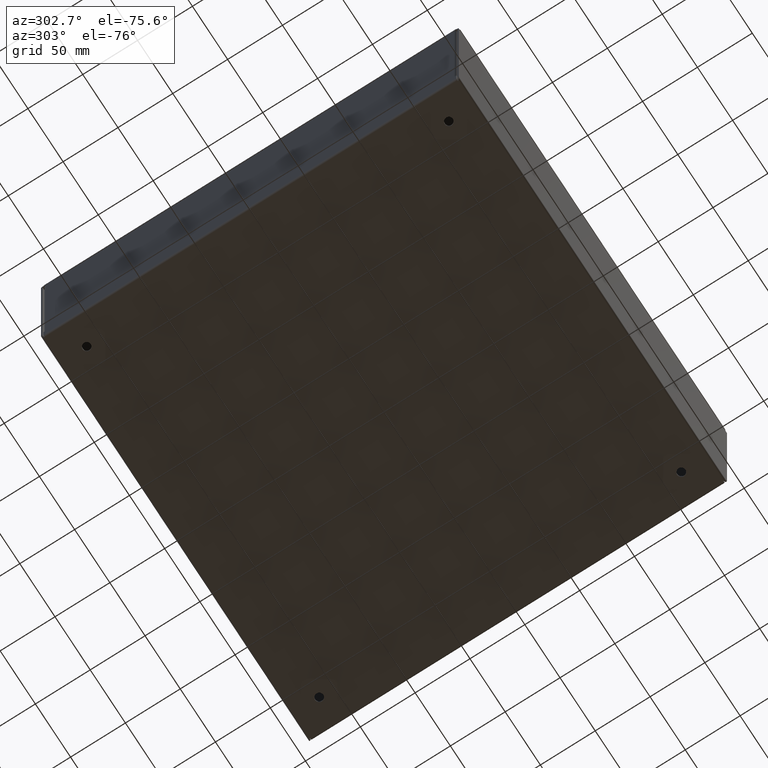
[diagram: clean part render]
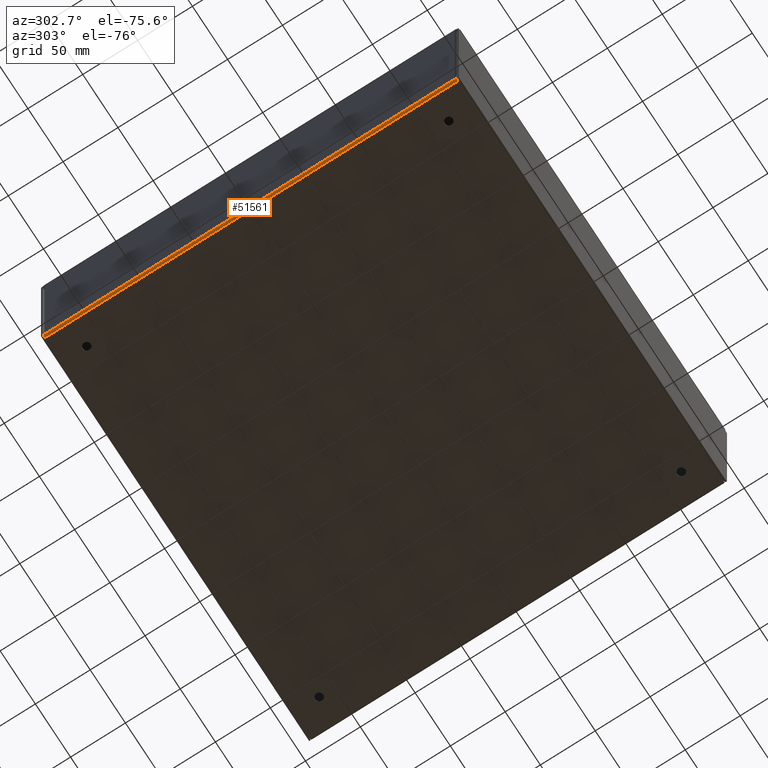
[diagram: same view with one face highlighted and labeled with its STEP entity id]
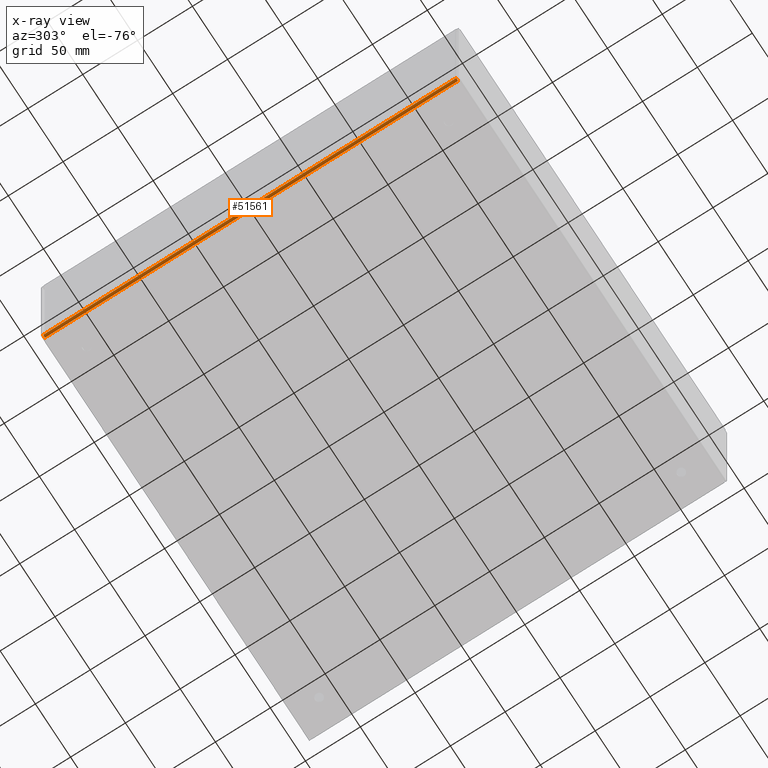
[diagram: x-ray of the same camera — body ghosted, the highlighted face saturated]
A machine part, auxiliary view. The second image highlights one B-rep face of the part: STEP entity #51561.
The next image is the same camera in x-ray: the body ghosted, the highlighted face saturated — about 0% of this face is hidden behind the body in this view.
In plain terms, the highlighted cylindrical surface (edge-blend (fillet) strip) has radius 2.1844 mm, axis along (0, 1, 0).
Its self-contained STEP definition (entity closure, byte-faithful):
#6734=FACE_OUTER_BOUND('',#9616,.T.);
#9616=EDGE_LOOP('',(#38442,#38443,#38444,#38445));
#13089=LINE('',#70276,#18530);
#13133=LINE('',#70818,#18574);
#18530=VECTOR('',#59257,0.393700787401575);
#18574=VECTOR('',#59423,0.393700787401575);
#23416=CIRCLE('',#54839,0.086);
#23431=CIRCLE('',#54884,0.086);
#24488=VERTEX_POINT('',#70273);
#24489=VERTEX_POINT('',#70275);
#24491=VERTEX_POINT('',#70296);
#24511=VERTEX_POINT('',#70396);
#29800=EDGE_CURVE('',#24488,#24489,#13089,.T.);
#29812=EDGE_CURVE('',#24491,#24488,#23416,.T.);
#29861=EDGE_CURVE('',#24511,#24489,#23431,.T.);
#29874=EDGE_CURVE('',#24511,#24491,#13133,.T.);
#38442=ORIENTED_EDGE('',*,*,#29800,.F.);
#38443=ORIENTED_EDGE('',*,*,#29812,.F.);
#38444=ORIENTED_EDGE('',*,*,#29874,.F.);
#38445=ORIENTED_EDGE('',*,*,#29861,.T.);
#50984=CYLINDRICAL_SURFACE('',#54886,0.086);
#51561=ADVANCED_FACE('',(#6734),#50984,.T.);
#54839=AXIS2_PLACEMENT_3D('',#70298,#59290,#59291);
#54884=AXIS2_PLACEMENT_3D('',#70397,#59414,#59415);
#54886=AXIS2_PLACEMENT_3D('',#70817,#59421,#59422);
#59257=DIRECTION('',(3.71852800797359E-32,-1.,0.));
#59290=DIRECTION('center_axis',(0.,1.,0.));
#59291=DIRECTION('ref_axis',(4.51195539598743E-14,0.,-1.));
#59414=DIRECTION('center_axis',(0.,1.,0.));
#59415=DIRECTION('ref_axis',(4.51195539598743E-14,0.,-1.));
#59421=DIRECTION('center_axis',(0.,1.,0.));
#59422=DIRECTION('ref_axis',(4.51195539598743E-14,0.,-1.));
#59423=DIRECTION('',(0.,1.,0.));
#70273=CARTESIAN_POINT('',(-7.5,7.414,0.086));
#70275=CARTESIAN_POINT('',(-7.5,-7.414,0.086));
#70276=CARTESIAN_POINT('',(-7.5,-3.707,0.0860000000000001));
#70296=CARTESIAN_POINT('',(-7.414,7.414,0.));
#70298=CARTESIAN_POINT('Origin',(-7.414,7.414,0.086));
#70396=CARTESIAN_POINT('',(-7.414,-7.414,0.));
#70397=CARTESIAN_POINT('Origin',(-7.414,-7.414,0.086));
#70817=CARTESIAN_POINT('Origin',(-7.414,0.,0.086));
#70818=CARTESIAN_POINT('',(-7.414,3.707,0.));